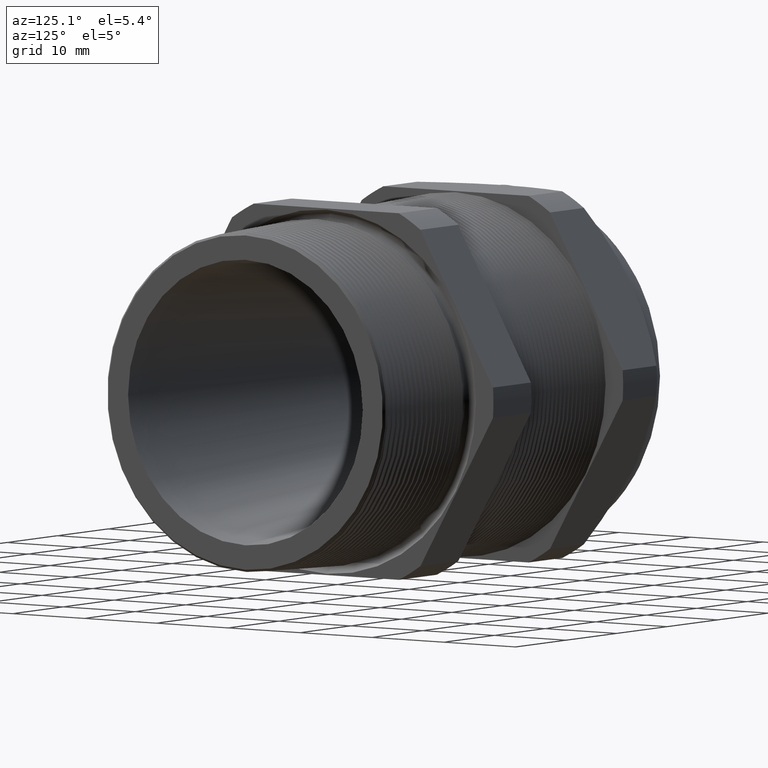
[diagram: clean part render]
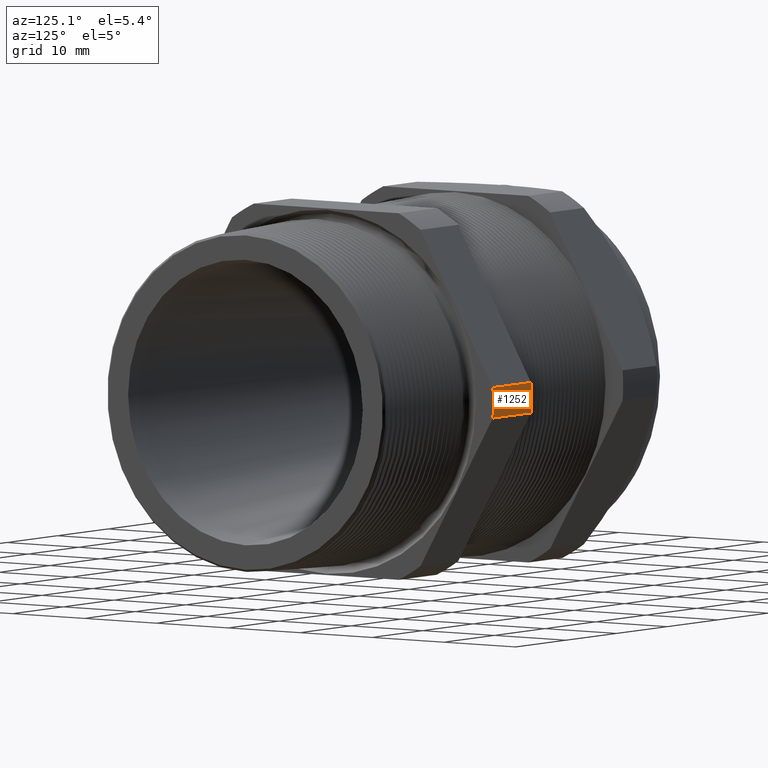
[diagram: same view with one face highlighted and labeled with its STEP entity id]
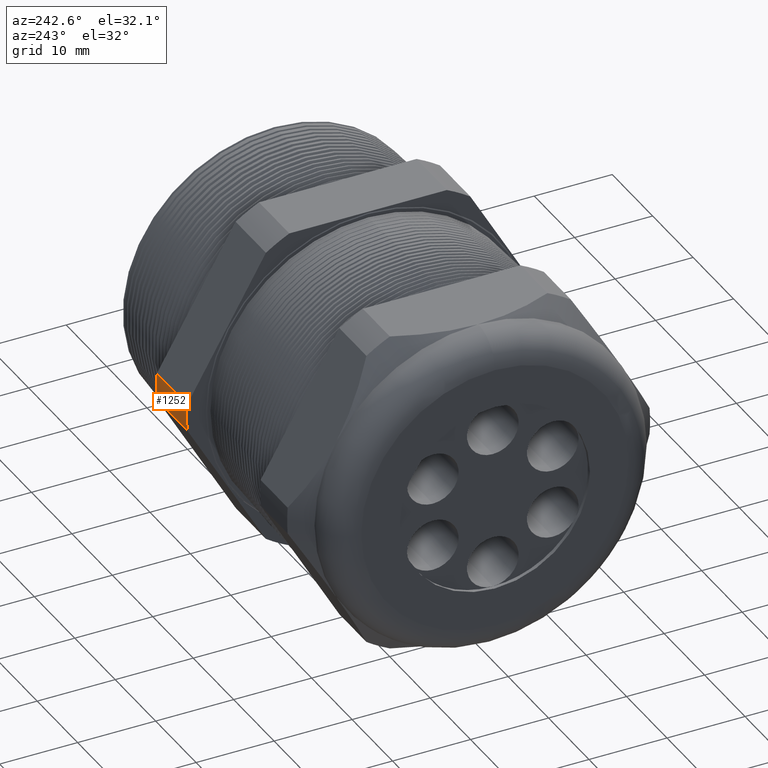
[diagram: same view with one face highlighted and labeled with its STEP entity id]
A machine part, auxiliary view. The second image highlights one B-rep face of the part: STEP entity #1252.
A second angle (auxiliary view) of the same face is appended — the face is thin or edge-on in the first view.
In plain terms, the highlighted cylindrical surface (partial cylindrical patch) has radius 23.26 mm, axis along (-1, 0, 0).
Its self-contained STEP definition (entity closure, byte-faithful):
#523 = VERTEX_POINT ( 'NONE', #2557 ) ;
#531 = VERTEX_POINT ( 'NONE', #2552 ) ;
#537 = EDGE_CURVE ( 'NONE', #531, #523, #2546, .T. ) ;
#1173 = VERTEX_POINT ( 'NONE', #3867 ) ;
#1175 = EDGE_CURVE ( 'NONE', #1173, #1176, #3866, .T. ) ;
#1176 = VERTEX_POINT ( 'NONE', #3861 ) ;
#1235 = ORIENTED_EDGE ( 'NONE', *, *, #1236, .F. ) ;
#1236 = EDGE_CURVE ( 'NONE', #1176, #531, #4004, .T. ) ;
#1237 = ORIENTED_EDGE ( 'NONE', *, *, #1175, .F. ) ;
#1252 = ADVANCED_FACE ( 'NONE', ( #3994 ), #3993, .T. ) ;
#1253 = EDGE_LOOP ( 'NONE', ( #1312, #1314, #1235, #1237 ) ) ;
#1312 = ORIENTED_EDGE ( 'NONE', *, *, #1313, .T. ) ;
#1313 = EDGE_CURVE ( 'NONE', #1173, #523, #4108, .T. ) ;
#1314 = ORIENTED_EDGE ( 'NONE', *, *, #537, .F. ) ;
#2544 = CARTESIAN_POINT ( 'NONE',  ( -0.6052755905511810800, 0.0000000000000000000, 0.0000000000000000000 ) ) ;
#2545 = AXIS2_PLACEMENT_3D ( 'NONE', #2544, #2606, #2605 ) ;
#2546 = CIRCLE ( 'NONE', #2545, 0.9157499999999999500 ) ;
#2552 = CARTESIAN_POINT ( 'NONE',  ( -0.6052755905511810800, 0.9132000843845192700, 0.06829105636982647800 ) ) ;
#2557 = CARTESIAN_POINT ( 'NONE',  ( -0.6052755905511810800, 0.9132000843845193800, -0.06829105636982670000 ) ) ;
#2605 = DIRECTION ( 'NONE',  ( 0.0000000000000000000, 0.0000000000000000000, 1.000000000000000000 ) ) ;
#2606 = DIRECTION ( 'NONE',  ( -1.000000000000000000, 0.0000000000000000000, 0.0000000000000000000 ) ) ;
#3861 = CARTESIAN_POINT ( 'NONE',  ( -0.3100000000000000000, 0.9132000843845192700, 0.06829105636982647800 ) ) ;
#3862 = DIRECTION ( 'NONE',  ( 0.0000000000000000000, 0.0000000000000000000, -1.000000000000000000 ) ) ;
#3863 = DIRECTION ( 'NONE',  ( 1.000000000000000000, 0.0000000000000000000, 0.0000000000000000000 ) ) ;
#3864 = CARTESIAN_POINT ( 'NONE',  ( -0.3100000000000000000, 0.0000000000000000000, 0.0000000000000000000 ) ) ;
#3865 = AXIS2_PLACEMENT_3D ( 'NONE', #3864, #3863, #3862 ) ;
#3866 = CIRCLE ( 'NONE', #3865, 0.9157499999999999500 ) ;
#3867 = CARTESIAN_POINT ( 'NONE',  ( -0.3100000000000000000, 0.9132000843845194900, -0.06829105636982671400 ) ) ;
#3988 = DIRECTION ( 'NONE',  ( 0.0000000000000000000, 0.0000000000000000000, 1.000000000000000000 ) ) ;
#3989 = DIRECTION ( 'NONE',  ( -1.000000000000000000, 0.0000000000000000000, 0.0000000000000000000 ) ) ;
#3990 = CARTESIAN_POINT ( 'NONE',  ( 0.3199999999999998400, 0.0000000000000000000, 0.0000000000000000000 ) ) ;
#3991 = AXIS2_PLACEMENT_3D ( 'NONE', #3990, #3989, #3988 ) ;
#3993 = CYLINDRICAL_SURFACE ( 'NONE', #3991, 0.9157499999999999500 ) ;
#3994 = FACE_OUTER_BOUND ( 'NONE', #1253, .T. ) ;
#4001 = DIRECTION ( 'NONE',  ( -1.000000000000000000, 0.0000000000000000000, 0.0000000000000000000 ) ) ;
#4002 = VECTOR ( 'NONE', #4001, 39.37007874015748100 ) ;
#4003 = CARTESIAN_POINT ( 'NONE',  ( 0.3199999999999998400, 0.9132000843845192700, 0.06829105636982647800 ) ) ;
#4004 = LINE ( 'NONE', #4003, #4002 ) ;
#4105 = DIRECTION ( 'NONE',  ( -1.000000000000000000, 0.0000000000000000000, 0.0000000000000000000 ) ) ;
#4106 = VECTOR ( 'NONE', #4105, 39.37007874015748100 ) ;
#4107 = CARTESIAN_POINT ( 'NONE',  ( 0.3199999999999998400, 0.9132000843845193800, -0.06829105636982670000 ) ) ;
#4108 = LINE ( 'NONE', #4107, #4106 ) ;